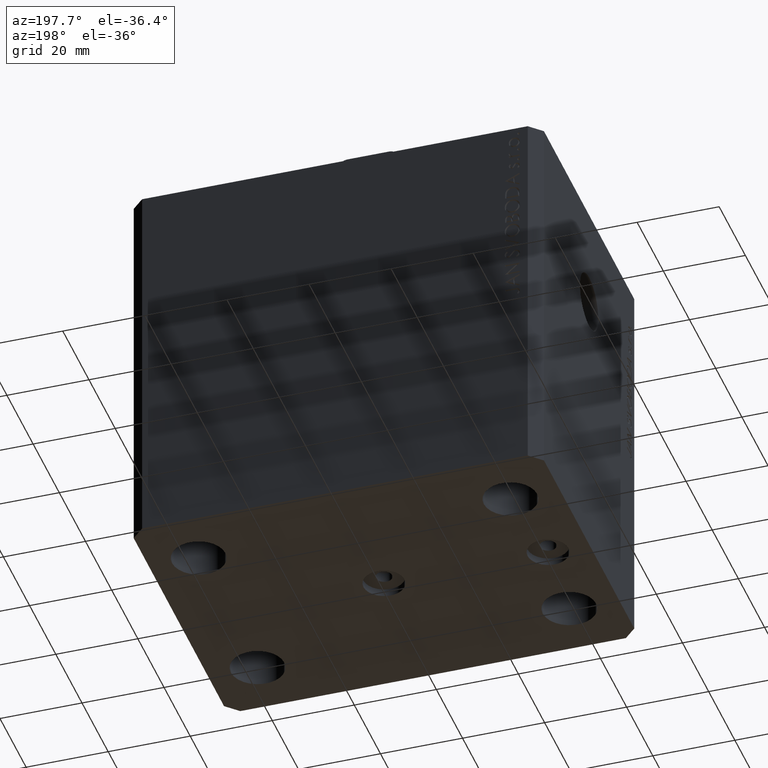
[diagram: clean part render]
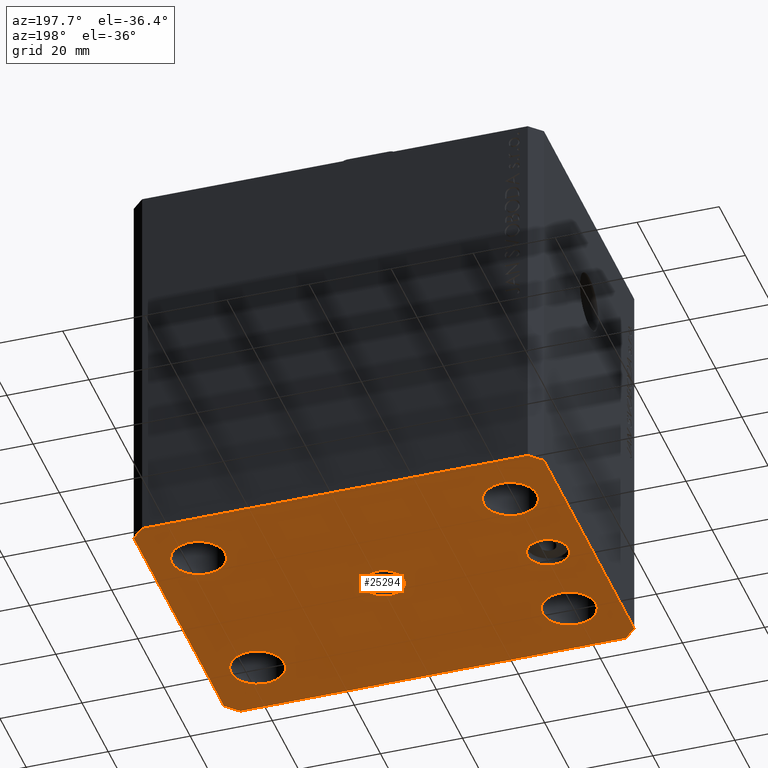
[diagram: same view with one face highlighted and labeled with its STEP entity id]
A machine part, auxiliary view. The second image highlights one B-rep face of the part: STEP entity #25294.
In plain terms, the highlighted planar face has unit normal (0, 0, 1).
Its self-contained STEP definition (entity closure, byte-faithful):
#91 = EDGE_CURVE ( 'NONE', #14706, #12061, #20987, .T. ) ;
#177 = VERTEX_POINT ( 'NONE', #26431 ) ;
#192 = ORIENTED_EDGE ( 'NONE', *, *, #15618, .F. ) ;
#252 = CARTESIAN_POINT ( 'NONE',  ( 47.00000000000000000, -37.50000000000000711, -95.00000000000000000 ) ) ;
#1004 = EDGE_CURVE ( 'NONE', #42676, #34347, #13679, .T. ) ;
#1005 = CARTESIAN_POINT ( 'NONE',  ( 44.50000000000000000, 22.49999999999998934, -95.00000000000000000 ) ) ;
#1304 = EDGE_CURVE ( 'NONE', #11038, #3287, #30769, .T. ) ;
#1323 = DIRECTION ( 'NONE',  ( 0.000000000000000000, 0.000000000000000000, -1.000000000000000000 ) ) ;
#1408 = ORIENTED_EDGE ( 'NONE', *, *, #42810, .F. ) ;
#2067 = VECTOR ( 'NONE', #29119, 1000.000000000000000 ) ;
#2069 = DIRECTION ( 'NONE',  ( -1.000000000000000000, 0.000000000000000000, 0.000000000000000000 ) ) ;
#2282 = CIRCLE ( 'NONE', #18836, 6.499999999999999112 ) ;
#2392 = ORIENTED_EDGE ( 'NONE', *, *, #91, .F. ) ;
#2514 = EDGE_LOOP ( 'NONE', ( #41711, #17654 ) ) ;
#2614 = CARTESIAN_POINT ( 'NONE',  ( 38.00000000000000000, 22.49999999999998934, -95.00000000000000000 ) ) ;
#2867 = CARTESIAN_POINT ( 'NONE',  ( -47.00000000000000000, -37.49999999999999289, -95.00000000000000000 ) ) ;
#2882 = AXIS2_PLACEMENT_3D ( 'NONE', #12876, #26640, #2069 ) ;
#2965 = LINE ( 'NONE', #37458, #3485 ) ;
#3242 = CIRCLE ( 'NONE', #9699, 6.499999999999999112 ) ;
#3287 = VERTEX_POINT ( 'NONE', #5707 ) ;
#3406 = EDGE_CURVE ( 'NONE', #9342, #29329, #2282, .T. ) ;
#3485 = VECTOR ( 'NONE', #30940, 1000.000000000000000 ) ;
#3598 = CARTESIAN_POINT ( 'NONE',  ( 47.00000000000000000, -37.50000000000000711, -95.00000000000000000 ) ) ;
#3702 = AXIS2_PLACEMENT_3D ( 'NONE', #8520, #5135, #21832 ) ;
#3951 = ORIENTED_EDGE ( 'NONE', *, *, #13065, .F. ) ;
#3999 = DIRECTION ( 'NONE',  ( 0.000000000000000000, 0.000000000000000000, 1.000000000000000000 ) ) ;
#4312 = DIRECTION ( 'NONE',  ( 0.7071067811865483499, 0.7071067811865466846, 0.000000000000000000 ) ) ;
#4602 = LINE ( 'NONE', #38206, #5765 ) ;
#4692 = DIRECTION ( 'NONE',  ( 1.000000000000000000, 0.000000000000000000, 0.000000000000000000 ) ) ;
#4817 = EDGE_CURVE ( 'NONE', #34241, #40264, #27530, .T. ) ;
#4874 = EDGE_CURVE ( 'NONE', #17324, #23108, #19604, .T. ) ;
#5045 = CIRCLE ( 'NONE', #2882, 4.999999999999997335 ) ;
#5125 = VERTEX_POINT ( 'NONE', #1005 ) ;
#5135 = DIRECTION ( 'NONE',  ( 0.000000000000000000, 0.000000000000000000, -1.000000000000000000 ) ) ;
#5707 = CARTESIAN_POINT ( 'NONE',  ( -47.00000000000001421, 37.50000000000000000, -95.00000000000000000 ) ) ;
#5765 = VECTOR ( 'NONE', #25127, 1000.000000000000114 ) ;
#6435 = CARTESIAN_POINT ( 'NONE',  ( -50.00000000000001421, 34.50000000000000000, -95.00000000000000000 ) ) ;
#6870 = CARTESIAN_POINT ( 'NONE',  ( -35.00000000000000000, 6.123233995736762338E-16, -95.00000000000000000 ) ) ;
#6917 = DIRECTION ( 'NONE',  ( 1.000000000000000000, -1.476360405086644309E-16, 0.000000000000000000 ) ) ;
#7034 = LINE ( 'NONE', #13131, #13190 ) ;
#7351 = CARTESIAN_POINT ( 'NONE',  ( -50.00000000000000000, -34.50000000000000000, -95.00000000000000000 ) ) ;
#7396 = DIRECTION ( 'NONE',  ( -0.000000000000000000, -0.000000000000000000, -1.000000000000000000 ) ) ;
#7550 = AXIS2_PLACEMENT_3D ( 'NONE', #36922, #16401, #30166 ) ;
#8240 = EDGE_CURVE ( 'NONE', #26308, #42676, #7034, .T. ) ;
#8289 = EDGE_LOOP ( 'NONE', ( #192, #24553 ) ) ;
#8520 = CARTESIAN_POINT ( 'NONE',  ( 0.000000000000000000, 0.000000000000000000, -95.00000000000000000 ) ) ;
#8583 = AXIS2_PLACEMENT_3D ( 'NONE', #12970, #19528, #19745 ) ;
#8651 = ORIENTED_EDGE ( 'NONE', *, *, #20493, .F. ) ;
#9058 = DIRECTION ( 'NONE',  ( 1.000000000000000000, 0.000000000000000000, 0.000000000000000000 ) ) ;
#9222 = DIRECTION ( 'NONE',  ( -0.000000000000000000, -0.000000000000000000, -1.000000000000000000 ) ) ;
#9342 = VERTEX_POINT ( 'NONE', #15980 ) ;
#9437 = CARTESIAN_POINT ( 'NONE',  ( 37.99999999999999289, -22.50000000000000000, -95.00000000000000000 ) ) ;
#9699 = AXIS2_PLACEMENT_3D ( 'NONE', #2614, #19313, #12756 ) ;
#10096 = DIRECTION ( 'NONE',  ( 1.000000000000000000, 0.000000000000000000, -0.000000000000000000 ) ) ;
#10832 = EDGE_CURVE ( 'NONE', #12061, #14706, #16891, .T. ) ;
#11038 = VERTEX_POINT ( 'NONE', #41189 ) ;
#12061 = VERTEX_POINT ( 'NONE', #23791 ) ;
#12109 = VERTEX_POINT ( 'NONE', #6870 ) ;
#12256 = EDGE_LOOP ( 'NONE', ( #1408, #3951 ) ) ;
#12756 = DIRECTION ( 'NONE',  ( 1.000000000000000000, 0.000000000000000000, 0.000000000000000000 ) ) ;
#12777 = EDGE_CURVE ( 'NONE', #177, #5125, #3242, .T. ) ;
#12876 = CARTESIAN_POINT ( 'NONE',  ( -40.00000000000000000, 0.000000000000000000, -95.00000000000000000 ) ) ;
#12970 = CARTESIAN_POINT ( 'NONE',  ( 37.99999999999999289, -22.50000000000000000, -95.00000000000000000 ) ) ;
#13065 = EDGE_CURVE ( 'NONE', #12109, #26318, #39940, .T. ) ;
#13131 = CARTESIAN_POINT ( 'NONE',  ( -50.00000000000001421, 34.50000000000000000, -95.00000000000000000 ) ) ;
#13190 = VECTOR ( 'NONE', #37248, 1000.000000000000000 ) ;
#13264 = VERTEX_POINT ( 'NONE', #32396 ) ;
#13679 = LINE ( 'NONE', #7351, #41925 ) ;
#13705 = AXIS2_PLACEMENT_3D ( 'NONE', #39191, #7396, #4692 ) ;
#14331 = AXIS2_PLACEMENT_3D ( 'NONE', #34458, #3999, #10096 ) ;
#14706 = VERTEX_POINT ( 'NONE', #41747 ) ;
#15143 = CARTESIAN_POINT ( 'NONE',  ( -31.49999999999999289, -22.50000000000000000, -95.00000000000000000 ) ) ;
#15566 = LINE ( 'NONE', #39914, #2067 ) ;
#15618 = EDGE_CURVE ( 'NONE', #5125, #177, #19852, .T. ) ;
#15980 = CARTESIAN_POINT ( 'NONE',  ( -44.50000000000000000, 22.49999999999999645, -95.00000000000000000 ) ) ;
#16401 = DIRECTION ( 'NONE',  ( 0.000000000000000000, 0.000000000000000000, -1.000000000000000000 ) ) ;
#16509 = ORIENTED_EDGE ( 'NONE', *, *, #42141, .F. ) ;
#16727 = VECTOR ( 'NONE', #27385, 1000.000000000000000 ) ;
#16891 = CIRCLE ( 'NONE', #39216, 5.000000000000000000 ) ;
#17112 = VERTEX_POINT ( 'NONE', #19231 ) ;
#17324 = VERTEX_POINT ( 'NONE', #23841 ) ;
#17654 = ORIENTED_EDGE ( 'NONE', *, *, #4874, .F. ) ;
#17867 = CARTESIAN_POINT ( 'NONE',  ( 38.00000000000000000, 22.49999999999998934, -95.00000000000000000 ) ) ;
#18729 = AXIS2_PLACEMENT_3D ( 'NONE', #19643, #36768, #9058 ) ;
#18836 = AXIS2_PLACEMENT_3D ( 'NONE', #23075, #19689, #36815 ) ;
#19231 = CARTESIAN_POINT ( 'NONE',  ( 50.00000000000000000, -34.50000000000000711, -95.00000000000000000 ) ) ;
#19313 = DIRECTION ( 'NONE',  ( -0.000000000000000000, -0.000000000000000000, -1.000000000000000000 ) ) ;
#19373 = DIRECTION ( 'NONE',  ( 1.000000000000000000, 0.000000000000000000, 0.000000000000000000 ) ) ;
#19528 = DIRECTION ( 'NONE',  ( -0.000000000000000000, -0.000000000000000000, -1.000000000000000000 ) ) ;
#19604 = CIRCLE ( 'NONE', #36879, 6.499999999999999112 ) ;
#19643 = CARTESIAN_POINT ( 'NONE',  ( -37.99999999999999289, -22.50000000000000000, -95.00000000000000000 ) ) ;
#19689 = DIRECTION ( 'NONE',  ( -0.000000000000000000, -0.000000000000000000, -1.000000000000000000 ) ) ;
#19745 = DIRECTION ( 'NONE',  ( 1.000000000000000000, 0.000000000000000000, 0.000000000000000000 ) ) ;
#19852 = CIRCLE ( 'NONE', #27065, 6.499999999999999112 ) ;
#20036 = EDGE_CURVE ( 'NONE', #17112, #13264, #2965, .T. ) ;
#20493 = EDGE_CURVE ( 'NONE', #3287, #26308, #15566, .T. ) ;
#20694 = FACE_BOUND ( 'NONE', #2514, .T. ) ;
#20813 = EDGE_CURVE ( 'NONE', #34347, #28796, #44331, .T. ) ;
#20987 = CIRCLE ( 'NONE', #3702, 5.000000000000000000 ) ;
#21181 = CARTESIAN_POINT ( 'NONE',  ( 0.000000000000000000, 0.000000000000000000, -95.00000000000000000 ) ) ;
#21589 = CARTESIAN_POINT ( 'NONE',  ( 44.49999999999999289, -22.50000000000000000, -95.00000000000000000 ) ) ;
#21709 = ORIENTED_EDGE ( 'NONE', *, *, #1304, .F. ) ;
#21801 = EDGE_CURVE ( 'NONE', #28796, #17112, #31607, .T. ) ;
#21832 = DIRECTION ( 'NONE',  ( -1.000000000000000000, 0.000000000000000000, 0.000000000000000000 ) ) ;
#23075 = CARTESIAN_POINT ( 'NONE',  ( -38.00000000000000000, 22.49999999999999645, -95.00000000000000000 ) ) ;
#23108 = VERTEX_POINT ( 'NONE', #21589 ) ;
#23774 = CIRCLE ( 'NONE', #13705, 6.499999999999999112 ) ;
#23791 = CARTESIAN_POINT ( 'NONE',  ( -5.000000000000000000, 0.000000000000000000, -95.00000000000000000 ) ) ;
#23841 = CARTESIAN_POINT ( 'NONE',  ( 31.49999999999999289, -22.50000000000000000, -95.00000000000000000 ) ) ;
#23853 = FACE_BOUND ( 'NONE', #39078, .T. ) ;
#24148 = ORIENTED_EDGE ( 'NONE', *, *, #8240, .F. ) ;
#24553 = ORIENTED_EDGE ( 'NONE', *, *, #12777, .F. ) ;
#24867 = EDGE_LOOP ( 'NONE', ( #21709, #27190, #40490, #30194, #44320, #41706, #24148, #8651 ) ) ;
#25127 = DIRECTION ( 'NONE',  ( -0.7071067811865361374, 0.7071067811865588970, 0.000000000000000000 ) ) ;
#25294 = ADVANCED_FACE ( 'NONE', ( #23853, #27244, #38056, #20694, #31741, #37599, #35104 ), #34889, .F. ) ;
#25457 = DIRECTION ( 'NONE',  ( -1.000000000000000000, 0.000000000000000000, 0.000000000000000000 ) ) ;
#25678 = ORIENTED_EDGE ( 'NONE', *, *, #43111, .F. ) ;
#25681 = CARTESIAN_POINT ( 'NONE',  ( -31.50000000000000000, 22.49999999999999645, -95.00000000000000000 ) ) ;
#25870 = EDGE_LOOP ( 'NONE', ( #25678, #39236 ) ) ;
#25925 = DIRECTION ( 'NONE',  ( 1.000000000000000000, 0.000000000000000000, 0.000000000000000000 ) ) ;
#26146 = CARTESIAN_POINT ( 'NONE',  ( -44.49999999999999289, -22.50000000000000000, -95.00000000000000000 ) ) ;
#26308 = VERTEX_POINT ( 'NONE', #6435 ) ;
#26318 = VERTEX_POINT ( 'NONE', #29535 ) ;
#26431 = CARTESIAN_POINT ( 'NONE',  ( 31.50000000000000000, 22.49999999999998934, -95.00000000000000000 ) ) ;
#26640 = DIRECTION ( 'NONE',  ( 0.000000000000000000, 0.000000000000000000, -1.000000000000000000 ) ) ;
#27065 = AXIS2_PLACEMENT_3D ( 'NONE', #17867, #31631, #39288 ) ;
#27190 = ORIENTED_EDGE ( 'NONE', *, *, #29045, .F. ) ;
#27244 = FACE_BOUND ( 'NONE', #12256, .T. ) ;
#27385 = DIRECTION ( 'NONE',  ( -1.000000000000000000, 7.381802025433175941E-17, 0.000000000000000000 ) ) ;
#27530 = CIRCLE ( 'NONE', #41194, 6.499999999999999112 ) ;
#28796 = VERTEX_POINT ( 'NONE', #3598 ) ;
#29045 = EDGE_CURVE ( 'NONE', #13264, #11038, #4602, .T. ) ;
#29119 = DIRECTION ( 'NONE',  ( -0.7071067811865483499, -0.7071067811865466846, 0.000000000000000000 ) ) ;
#29329 = VERTEX_POINT ( 'NONE', #25681 ) ;
#29535 = CARTESIAN_POINT ( 'NONE',  ( -45.00000000000000000, 0.000000000000000000, -95.00000000000000000 ) ) ;
#30166 = DIRECTION ( 'NONE',  ( -1.000000000000000000, 0.000000000000000000, 0.000000000000000000 ) ) ;
#30194 = ORIENTED_EDGE ( 'NONE', *, *, #21801, .F. ) ;
#30769 = LINE ( 'NONE', #37515, #16727 ) ;
#30940 = DIRECTION ( 'NONE',  ( 7.441712302741091634E-15, 1.000000000000000000, 0.000000000000000000 ) ) ;
#31607 = LINE ( 'NONE', #252, #32240 ) ;
#31631 = DIRECTION ( 'NONE',  ( -0.000000000000000000, -0.000000000000000000, -1.000000000000000000 ) ) ;
#31741 = FACE_BOUND ( 'NONE', #8289, .T. ) ;
#32240 = VECTOR ( 'NONE', #4312, 1000.000000000000000 ) ;
#32396 = CARTESIAN_POINT ( 'NONE',  ( 50.00000000000051870, 34.49999999999995026, -95.00000000000000000 ) ) ;
#33044 = VECTOR ( 'NONE', #6917, 1000.000000000000000 ) ;
#33572 = CARTESIAN_POINT ( 'NONE',  ( -37.99999999999999289, -22.50000000000000000, -95.00000000000000000 ) ) ;
#34241 = VERTEX_POINT ( 'NONE', #26146 ) ;
#34243 = CARTESIAN_POINT ( 'NONE',  ( -47.00000000000000000, -37.49999999999999289, -95.00000000000000000 ) ) ;
#34347 = VERTEX_POINT ( 'NONE', #34243 ) ;
#34458 = CARTESIAN_POINT ( 'NONE',  ( 0.000000000000000000, 0.000000000000000000, -95.00000000000000000 ) ) ;
#34889 = PLANE ( 'NONE',  #14331 ) ;
#35104 = FACE_OUTER_BOUND ( 'NONE', #24867, .T. ) ;
#35947 = CIRCLE ( 'NONE', #8583, 6.499999999999999112 ) ;
#36768 = DIRECTION ( 'NONE',  ( -0.000000000000000000, -0.000000000000000000, -1.000000000000000000 ) ) ;
#36815 = DIRECTION ( 'NONE',  ( 1.000000000000000000, 0.000000000000000000, 0.000000000000000000 ) ) ;
#36879 = AXIS2_PLACEMENT_3D ( 'NONE', #9437, #39676, #19373 ) ;
#36922 = CARTESIAN_POINT ( 'NONE',  ( -40.00000000000000000, 0.000000000000000000, -95.00000000000000000 ) ) ;
#37248 = DIRECTION ( 'NONE',  ( 2.011273595335428326E-16, -1.000000000000000000, 0.000000000000000000 ) ) ;
#37458 = CARTESIAN_POINT ( 'NONE',  ( 50.00000000000000000, -34.50000000000000711, -95.00000000000000000 ) ) ;
#37515 = CARTESIAN_POINT ( 'NONE',  ( 47.00000000000056843, 37.49999999999999289, -95.00000000000000000 ) ) ;
#37572 = DIRECTION ( 'NONE',  ( 0.7071067811865491270, -0.7071067811865459074, 0.000000000000000000 ) ) ;
#37599 = FACE_BOUND ( 'NONE', #25870, .T. ) ;
#38056 = FACE_BOUND ( 'NONE', #39456, .T. ) ;
#38114 = ORIENTED_EDGE ( 'NONE', *, *, #4817, .F. ) ;
#38161 = CIRCLE ( 'NONE', #18729, 6.499999999999999112 ) ;
#38206 = CARTESIAN_POINT ( 'NONE',  ( 50.00000000000051870, 34.49999999999995026, -95.00000000000000000 ) ) ;
#39078 = EDGE_LOOP ( 'NONE', ( #43008, #2392 ) ) ;
#39191 = CARTESIAN_POINT ( 'NONE',  ( -38.00000000000000000, 22.49999999999999645, -95.00000000000000000 ) ) ;
#39216 = AXIS2_PLACEMENT_3D ( 'NONE', #21181, #1323, #25457 ) ;
#39236 = ORIENTED_EDGE ( 'NONE', *, *, #3406, .F. ) ;
#39288 = DIRECTION ( 'NONE',  ( 1.000000000000000000, 0.000000000000000000, 0.000000000000000000 ) ) ;
#39294 = CARTESIAN_POINT ( 'NONE',  ( -50.00000000000000000, -34.50000000000000000, -95.00000000000000000 ) ) ;
#39456 = EDGE_LOOP ( 'NONE', ( #16509, #38114 ) ) ;
#39676 = DIRECTION ( 'NONE',  ( -0.000000000000000000, -0.000000000000000000, -1.000000000000000000 ) ) ;
#39914 = CARTESIAN_POINT ( 'NONE',  ( -47.00000000000001421, 37.50000000000000000, -95.00000000000000000 ) ) ;
#39940 = CIRCLE ( 'NONE', #7550, 4.999999999999997335 ) ;
#40264 = VERTEX_POINT ( 'NONE', #15143 ) ;
#40490 = ORIENTED_EDGE ( 'NONE', *, *, #20036, .F. ) ;
#40702 = EDGE_CURVE ( 'NONE', #23108, #17324, #35947, .T. ) ;
#41189 = CARTESIAN_POINT ( 'NONE',  ( 47.00000000000056843, 37.49999999999999289, -95.00000000000000000 ) ) ;
#41194 = AXIS2_PLACEMENT_3D ( 'NONE', #33572, #9222, #25925 ) ;
#41706 = ORIENTED_EDGE ( 'NONE', *, *, #1004, .F. ) ;
#41711 = ORIENTED_EDGE ( 'NONE', *, *, #40702, .F. ) ;
#41747 = CARTESIAN_POINT ( 'NONE',  ( 5.000000000000000000, 6.123233995736765296E-16, -95.00000000000000000 ) ) ;
#41925 = VECTOR ( 'NONE', #37572, 1000.000000000000114 ) ;
#42141 = EDGE_CURVE ( 'NONE', #40264, #34241, #38161, .T. ) ;
#42676 = VERTEX_POINT ( 'NONE', #39294 ) ;
#42810 = EDGE_CURVE ( 'NONE', #26318, #12109, #5045, .T. ) ;
#43008 = ORIENTED_EDGE ( 'NONE', *, *, #10832, .F. ) ;
#43111 = EDGE_CURVE ( 'NONE', #29329, #9342, #23774, .T. ) ;
#44320 = ORIENTED_EDGE ( 'NONE', *, *, #20813, .F. ) ;
#44331 = LINE ( 'NONE', #2867, #33044 ) ;